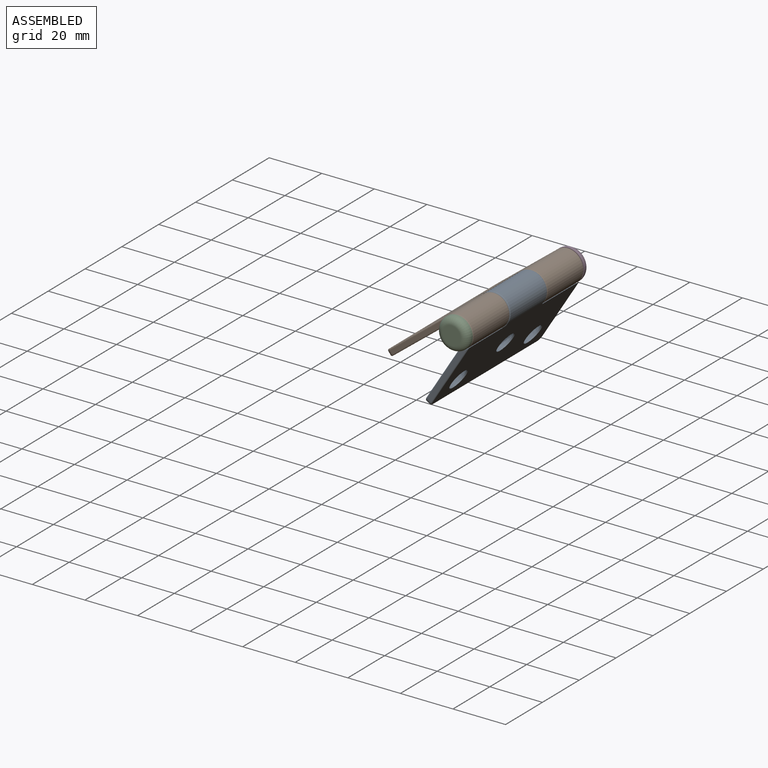
[diagram: assembled view]
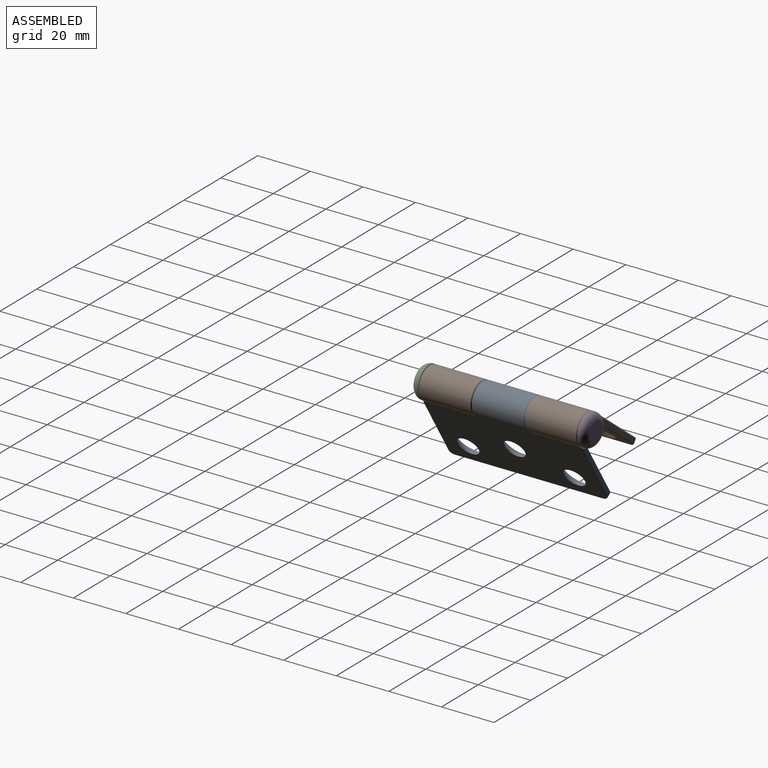
[diagram: assembled view, second angle]
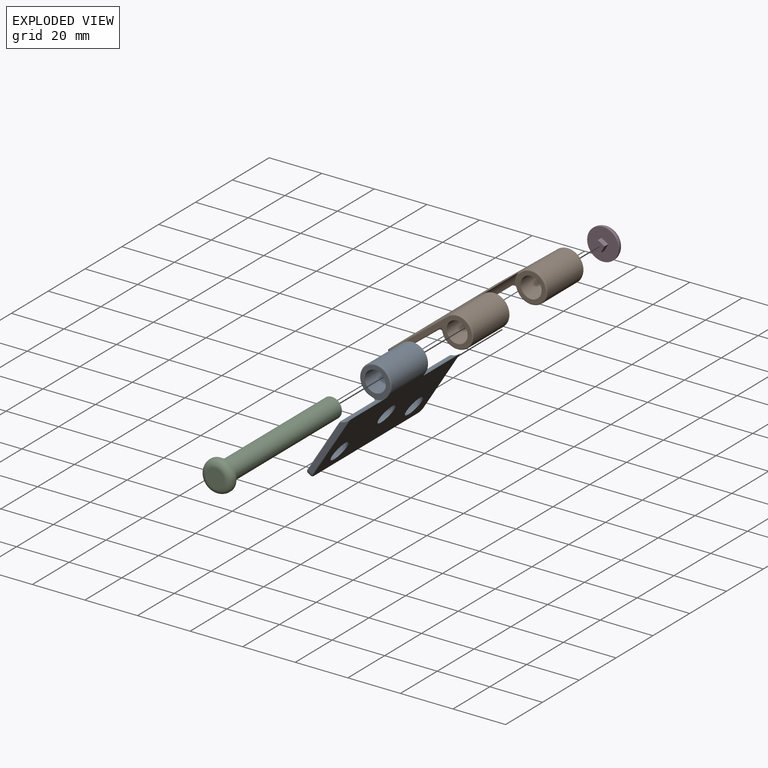
[diagram: exploded view]
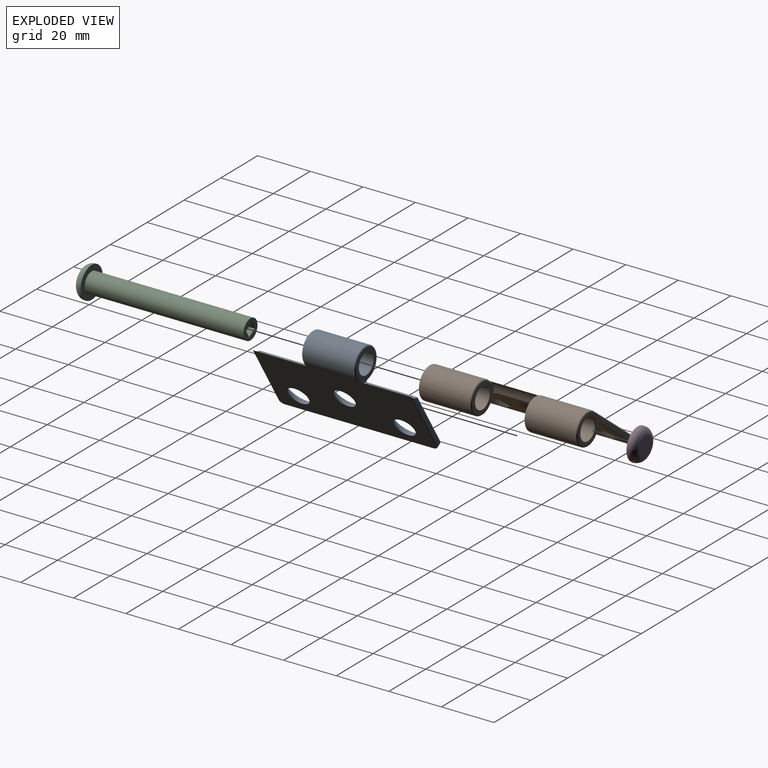
[diagram: exploded view, second angle]
ASSEMBLY  parts=4 mates=5
PART A: 36 faces, bbox 36.8x60.8x13.1 mm
  f0: cylinder r=6mm len=19.4mm, axis (0,-1,0), area 591mm2, adj f1,f17,f19,f34
  f1: plane 59.4x29.5mm, normal (0,0,-1), area 1538.1mm2, adj f0,f6,f7,f8,f13,f15,f18,f20
  f2: plane 59.4x24.38mm, normal (0,0,1), area 1077.3mm2, adj f9,f10,f11,f13,f15,f23,f24,f25
  f3: plane 56.4x1.5mm, normal (-1,0,0), area 84.6mm2, adj f21,f22,f25,f30
  f4: plane 25.14x1.5mm, normal (0,1,0), area 36.1mm2, adj f15,f22,f27,f28
  f5: plane 25.14x1.5mm, normal (0,-1,0), area 36.1mm2, adj f13,f21,f23,f32
  f6: cylinder r=4mm len=8mm, axis (0,0,1), area 12.6mm2, adj f1,f9
  f7: cylinder r=4mm len=8mm, axis (0,0,1), area 12.6mm2, adj f1,f10
  f8: cylinder r=4mm len=8mm, axis (0,0,1), area 12.6mm2, adj f1,f11
  f9: cone r=4mm half-angle=45deg, axis (0,0,1), area 88.9mm2, adj f2,f6
  f10: cone r=4mm half-angle=45deg, axis (0,0,1), area 88.9mm2, adj f2,f7
  f11: cone r=4mm half-angle=45deg, axis (0,0,1), area 88.9mm2, adj f2,f8
  f12: plane 11.09x11.09mm, normal (0,-1,0), area 47.8mm2, adj f13,f16,f19,f20,f33
  f13: cylinder r=6.2mm len=20.5mm, axis (0,-1,0), area 88.9mm2, adj f1,f2,f5,f12,f20,f23,f32,f33
  f14: plane 11.09x11.09mm, normal (0,1,0), area 47.8mm2, adj f15,f16,f17,f18,f35
  f15: cylinder r=6.2mm len=20.5mm, axis (0,-1,0), area 88.9mm2, adj f1,f2,f4,f14,f18,f27,f28,f35
  f16: cylinder r=4mm len=20.4mm, axis (0,-1,0), area 512.7mm2, adj f12,f14
  f17: torus R=5.5mm, axis (0,-1,0), area 23.4mm2, adj f0,f14,f18,f35
  f18: cylinder r=0.5mm len=2.86mm, axis (1,0,0), area 1.7mm2, adj f1,f14,f15,f17
  f19: torus R=5.5mm, axis (0,-1,0), area 23.4mm2, adj f0,f12,f20,f33
  f20: cylinder r=0.5mm len=2.86mm, axis (-1,0,0), area 1.7mm2, adj f1,f12,f13,f19
  f21: cylinder r=2mm len=2mm, axis (0,0,-1), area 4.7mm2, adj f3,f5,f24,f31
  f22: cylinder r=2mm len=2mm, axis (0,0,1), area 4.7mm2, adj f3,f4,f26,f29
  f23: cylinder r=0.5mm len=23.26mm, axis (-1,0,0), area 18.1mm2, adj f2,f5,f13,f24
  f24: torus R=1.5mm, axis (0,0,-1), area 2.2mm2, adj f2,f21,f23,f25
  f25: cylinder r=0.5mm len=56.4mm, axis (0,-1,0), area 44.3mm2, adj f2,f3,f24,f26
  f26: torus R=1.5mm, axis (0,0,-1), area 2.2mm2, adj f2,f22,f25,f27
  f27: cylinder r=0.5mm len=23.26mm, axis (1,0,0), area 18.1mm2, adj f2,f4,f15,f26
  f28: cylinder r=0.5mm len=26.44mm, axis (-1,0,0), area 20.3mm2, adj f1,f4,f15,f29
  f29: torus R=1.5mm, axis (0,0,1), area 2.2mm2, adj f1,f22,f28,f30
  f30: cylinder r=0.5mm len=56.4mm, axis (0,-1,0), area 44.3mm2, adj f1,f3,f29,f31
  f31: torus R=1.5mm, axis (0,0,1), area 2.2mm2, adj f1,f21,f30,f32
  f32: cylinder r=0.5mm len=26.44mm, axis (1,0,0), area 20.3mm2, adj f1,f5,f13,f31
  f33: bspline ~1.82x1.81mm, area 1.9mm2, adj f2,f12,f13,f19,f34
  f34: cylinder r=1mm len=19.4mm, axis (0,-1,0), area 37.6mm2, adj f0,f2,f33,f35
  f35: bspline ~1.82x1.81mm, area 1.9mm2, adj f2,f14,f15,f17,f34
PART B: 45 faces, bbox 36.8x60.8x13.1 mm
  f0: bspline ~1.46x1.2mm, area 0.8mm2, adj f5,f7,f37,f38,f41,f42
  f1: cylinder r=1mm len=19.02mm, axis (0,-1,0), area 36.8mm2, adj f2,f4,f5,f39
  f2: bspline ~1.46x1.2mm, area 0.8mm2, adj f1,f4,f5,f27,f29,f40
  f3: plane 59.4x29.5mm, normal (0,0,-1), area 1567.7mm2, adj f4,f7,f12,f13,f14,f18,f22,f24
  f4: cylinder r=6mm len=19.2mm, axis (0,-1,0), area 584.9mm2, adj f1,f2,f3,f21,f27
  f5: plane 59.4x24.38mm, normal (0,0,1), area 1050.3mm2, adj f0,f1,f2,f15,f16,f17,f18,f29
  f6: cylinder r=4mm len=19.9mm, axis (0,-1,0), area 500.1mm2, adj f19,f44
  f7: cylinder r=6mm len=19.2mm, axis (0,-1,0), area 584.9mm2, adj f0,f3,f23,f38,f42
  f8: plane 56.4x1.5mm, normal (1,0,0), area 84.6mm2, adj f25,f26,f32,f33
  f9: cylinder r=4mm len=20.2mm, axis (0,-1,0), area 507.7mm2, adj f11,f20
  f10: plane 33.5x11mm, normal (0,1,0), area 75.1mm2, adj f26,f27,f28,f29,f44
  f11: plane 33.5x11mm, normal (0,-1,0), area 82.9mm2, adj f9,f25,f36,f37,f38
  f12: cylinder r=4mm len=8mm, axis (0,0,1), area 12.6mm2, adj f3,f15
  f13: cylinder r=4mm len=8mm, axis (0,0,1), area 12.6mm2, adj f3,f16
  f14: cylinder r=4mm len=8mm, axis (0,0,1), area 12.6mm2, adj f3,f17
  f15: cone r=4mm half-angle=45deg, axis (0,0,1), area 88.9mm2, adj f5,f12
  f16: cone r=4mm half-angle=45deg, axis (0,0,1), area 88.9mm2, adj f5,f13
  f17: cone r=4mm half-angle=45deg, axis (0,0,1), area 88.9mm2, adj f5,f14
  f18: cylinder r=6.2mm len=21mm, axis (0,-1,0), area 90.1mm2, adj f3,f5,f19,f20,f22,f24,f39,f43
  f19: plane 11.09x11.09mm, normal (0,-1,0), area 47.8mm2, adj f6,f18,f21,f22,f39
  f20: plane 11.09x11.09mm, normal (0,1,0), area 47.8mm2, adj f9,f18,f23,f24,f43
  f21: torus R=5.5mm, axis (0,-1,0), area 23.4mm2, adj f4,f19,f22,f39
  f22: cylinder r=0.5mm len=2.86mm, axis (-1,0,0), area 1.7mm2, adj f3,f18,f19,f21
  f23: torus R=5.5mm, axis (0,-1,0), area 23.4mm2, adj f7,f20,f24,f43
  f24: cylinder r=0.5mm len=2.86mm, axis (1,0,0), area 1.7mm2, adj f3,f18,f20,f23
  f25: cylinder r=2mm len=2mm, axis (0,0,-1), area 4.7mm2, adj f8,f11,f34,f35
  f26: cylinder r=2mm len=2mm, axis (0,0,1), area 4.7mm2, adj f8,f10,f30,f31
  f27: torus R=5.5mm, axis (0,-1,0), area 23.9mm2, adj f2,f4,f10,f28,f40
  f28: cylinder r=0.5mm len=28mm, axis (1,0,0), area 22mm2, adj f3,f10,f27,f30
  f29: cylinder r=0.5mm len=24.23mm, axis (-1,0,0), area 17.7mm2, adj f2,f5,f10,f31,f40
  f30: torus R=1.5mm, axis (0,0,1), area 2.2mm2, adj f3,f26,f28,f32
  f31: torus R=1.5mm, axis (0,0,-1), area 2.2mm2, adj f5,f26,f29,f33
  f32: cylinder r=0.5mm len=56.4mm, axis (0,-1,0), area 44.3mm2, adj f3,f8,f30,f34
  f33: cylinder r=0.5mm len=56.4mm, axis (0,-1,0), area 44.3mm2, adj f5,f8,f31,f35
  f34: torus R=1.5mm, axis (0,0,1), area 2.2mm2, adj f3,f25,f32,f36
  f35: torus R=1.5mm, axis (0,0,-1), area 2.2mm2, adj f5,f25,f33,f37
  f36: cylinder r=0.5mm len=28mm, axis (-1,0,0), area 22mm2, adj f3,f11,f34,f38
  f37: cylinder r=0.5mm len=24.23mm, axis (1,0,0), area 17.7mm2, adj f0,f5,f11,f35,f41
  f38: torus R=5.5mm, axis (0,-1,0), area 23.9mm2, adj f0,f7,f11,f36,f41
  f39: bspline ~1.82x1.81mm, area 1.9mm2, adj f1,f5,f18,f19,f21
  f40: bspline ~2.41x1.61mm, area 0.9mm2, adj f2,f27,f29
  f41: bspline ~2.41x1.61mm, area 0.9mm2, adj f0,f37,f38
  f42: cylinder r=1mm len=19.02mm, axis (0,-1,0), area 36.8mm2, adj f0,f5,f7,f43
  f43: bspline ~1.82x1.81mm, area 1.9mm2, adj f5,f18,f20,f23,f42
  f44: torus R=4.3mm, axis (0,-1,0), area 12.2mm2, adj f6,f10
PART C: 15 faces, bbox 13x63.4x13 mm
  f0: plane 7.6x7.6mm, normal (0,1,0), area 29.4mm2, adj f5,f11,f12,f13,f14
  f1: cylinder r=6mm len=12mm, axis (0,1,0), area 18.8mm2, adj f3,f4
  f2: plane 7x7mm, normal (0,-1,0), area 38.5mm2, adj f4
  f3: plane 12x12mm, normal (0,1,0), area 67.7mm2, adj f1,f5
  f4: torus R=3.5mm, axis (0,-1,0), area 125.6mm2, adj f1,f2
  f5: cylinder r=3.8mm len=60.4mm, axis (0,-1,0), area 1442.1mm2, adj f0,f3
  f6: plane 3.4x1.9mm, normal (0,0,1), area 6.5mm2, adj f7,f9,f10,f11
  f7: plane 3.4x1.9mm, normal (1,0,0), area 6.5mm2, adj f6,f8,f10,f12
  f8: plane 3.4x1.9mm, normal (0,0,-1), area 6.5mm2, adj f7,f9,f10,f14
  f9: plane 3.4x1.9mm, normal (-1,0,0), area 6.5mm2, adj f6,f8,f10,f13
  f10: plane 3.4x3.4mm, normal (0,1,0), area 11.6mm2, adj f6,f7,f8,f9
  f11: cylinder r=0.3mm len=4mm, axis (-1,0,0), area 1.7mm2, adj f0,f6,f12,f13
  f12: cylinder r=0.3mm len=4mm, axis (0,0,1), area 1.7mm2, adj f0,f7,f11,f14
  f13: cylinder r=0.3mm len=4mm, axis (0,0,-1), area 1.7mm2, adj f0,f9,f11,f14
  f14: cylinder r=0.3mm len=4mm, axis (1,0,0), area 1.7mm2, adj f0,f8,f12,f13
PART D: 9 faces, bbox 13x5x13 mm
  f0: plane 3x2mm, normal (0,0,-1), area 6mm2, adj f1,f3,f4,f7
  f1: plane 3x2mm, normal (-1,0,0), area 6mm2, adj f0,f2,f4,f7
  f2: plane 3x2mm, normal (0,0,1), area 6mm2, adj f1,f3,f4,f7
  f3: plane 3x2mm, normal (1,0,0), area 6mm2, adj f0,f2,f4,f7
  f4: plane 3x3mm, normal (0,-1,0), area 9mm2, adj f0,f1,f2,f3
  f5: cylinder r=6mm len=12mm, axis (0,-1,0), area 18.8mm2, adj f7,f8
  f6: plane 7x7mm, normal (0,1,0), area 38.5mm2, adj f8
  f7: plane 12x12mm, normal (0,-1,0), area 104.1mm2, adj f0,f1,f2,f3,f5
  f8: torus R=3.5mm, axis (0,1,0), area 125.6mm2, adj f5,f6
PLACE A rot(axis=(0,-1,0),58deg) t=(3.33,-53.48,-13.69)mm
PLACE B rot(axis=(0,1,0),142deg) t=(-5.45,-53.68,-5.78)mm
PLACE C rot(axis=(0,-1,0),60.2deg) t=(3.45,-53.68,-13.49)mm
PLACE D rot(axis=(0,-1,0),150.2deg) t=(1.22,-68.68,-5.3)mm
MATE revolute A.f13 <-> B.f4  axis (0,-1,0) through (-1.76,-63.68,-10.51)mm
MATE slider D.f5 <-> C.f1  axis (0,-1,0) through (-1.76,-23.48,-10.51)mm
MATE revolute C.f1 <-> B.f4  axis (0,1,0) through (-1.76,-83.88,-10.51)mm
MATE parallel D.f5 <-> B.f4  axis (0,-1,0) through (-1.76,-23.48,-10.51)mm
MATE parallel D.f5 <-> C.f1  axis (0,-1,0) through (-1.76,-23.48,-10.51)mm
